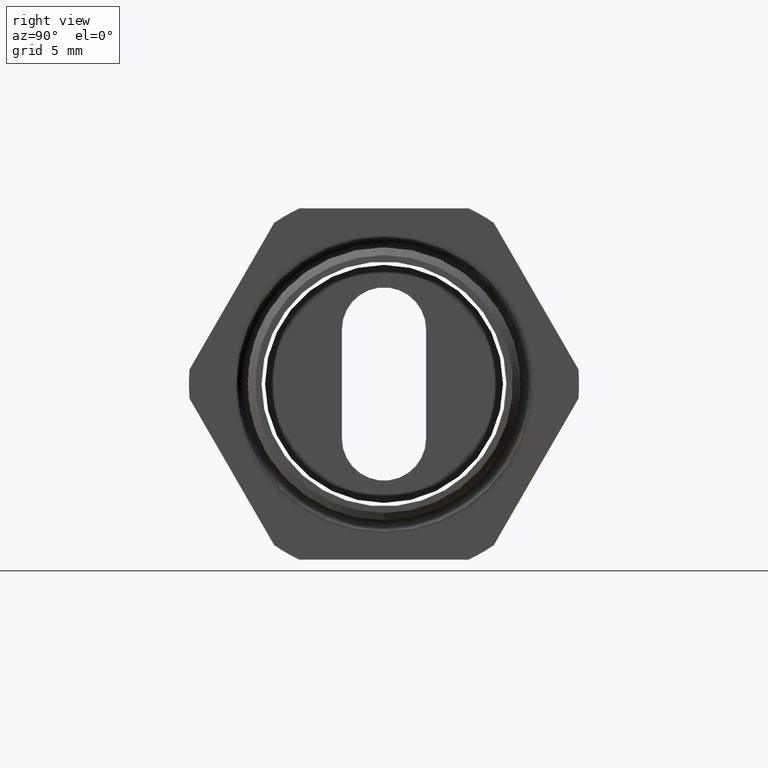
[diagram: clean part render]
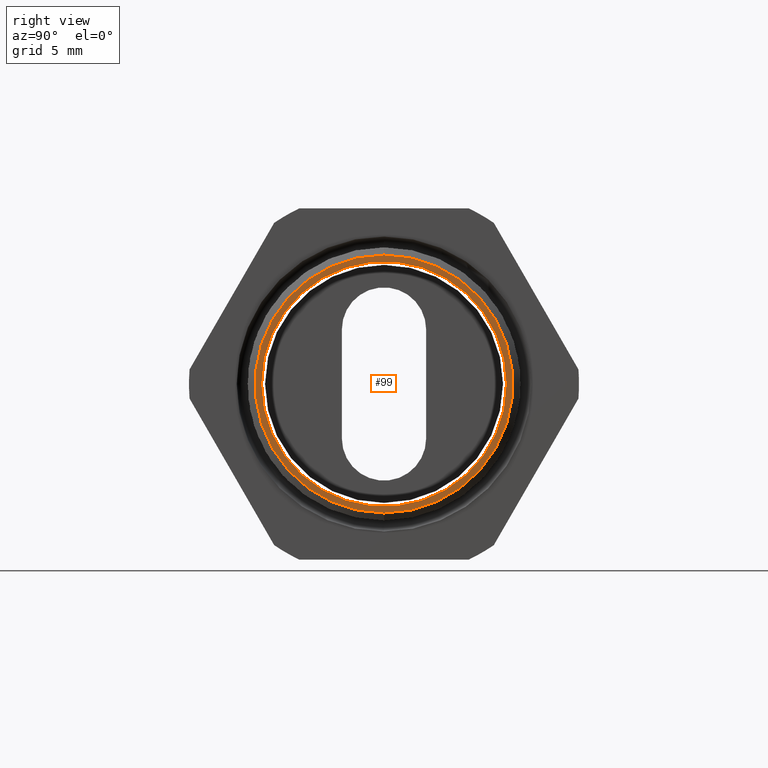
[diagram: same view with one face highlighted and labeled with its STEP entity id]
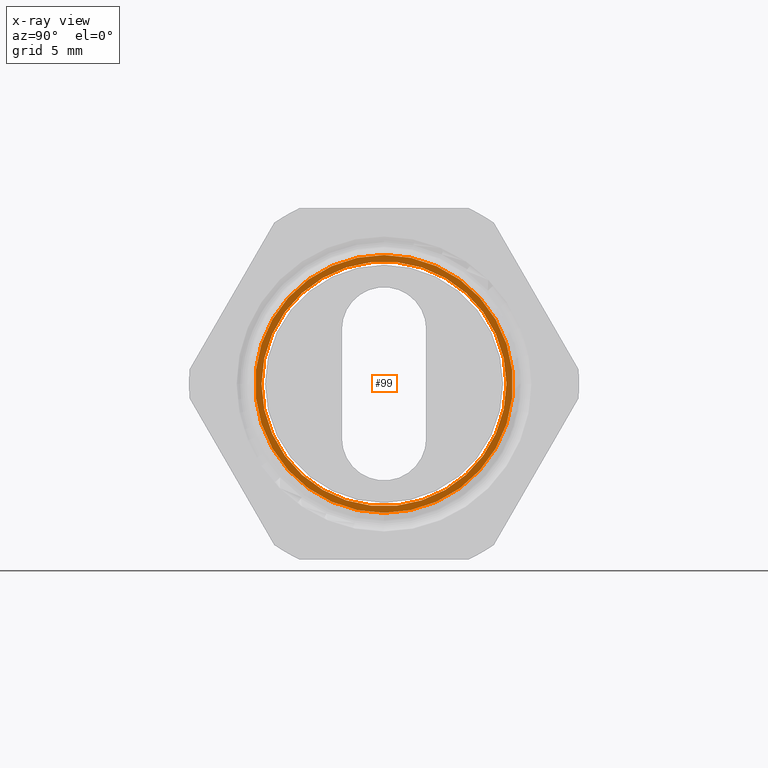
[diagram: x-ray of the same camera — body ghosted, the highlighted face saturated]
A machine part, right view. The second image highlights one B-rep face of the part: STEP entity #99.
The next image is the same camera in x-ray: the body ghosted, the highlighted face saturated — about 0% of this face is hidden behind the body in this view.
In plain terms, the highlighted planar face has unit normal (1, -0, 0).
Its self-contained STEP definition (entity closure, byte-faithful):
#21 = EDGE_CURVE ( 'NONE', #1270, #1329, #1397, .T. ) ;
#22 = ORIENTED_EDGE ( 'NONE', *, *, #1345, .F. ) ;
#23 = EDGE_LOOP ( 'NONE', ( #24, #25 ) ) ;
#24 = ORIENTED_EDGE ( 'NONE', *, *, #42, .F. ) ;
#25 = ORIENTED_EDGE ( 'NONE', *, *, #1053, .F. ) ;
#42 = EDGE_CURVE ( 'NONE', #997, #1051, #1431, .T. ) ;
#99 = ADVANCED_FACE ( 'NONE', ( #1514, #1513 ), #1512, .T. ) ;
#100 = EDGE_LOOP ( 'NONE', ( #101, #22 ) ) ;
#101 = ORIENTED_EDGE ( 'NONE', *, *, #21, .F. ) ;
#997 = VERTEX_POINT ( 'NONE', #2996 ) ;
#1051 = VERTEX_POINT ( 'NONE', #3144 ) ;
#1053 = EDGE_CURVE ( 'NONE', #1051, #997, #3143, .T. ) ;
#1270 = VERTEX_POINT ( 'NONE', #3500 ) ;
#1329 = VERTEX_POINT ( 'NONE', #3639 ) ;
#1345 = EDGE_CURVE ( 'NONE', #1329, #1270, #3667, .T. ) ;
#1389 = DIRECTION ( 'NONE',  ( 4.652354459868603200E-017, 1.000000000000000000, 0.0000000000000000000 ) ) ;
#1390 = DIRECTION ( 'NONE',  ( -1.000000000000000000, 3.749030204222210100E-017, 0.0000000000000000000 ) ) ;
#1391 = CARTESIAN_POINT ( 'NONE',  ( 0.03999999999999996600, 1.045553464142689600E-017, 0.0000000000000000000 ) ) ;
#1392 = AXIS2_PLACEMENT_3D ( 'NONE', #1391, #1390, #1389 ) ;
#1397 = CIRCLE ( 'NONE', #1392, 0.3669980459933370700 ) ;
#1427 = DIRECTION ( 'NONE',  ( 4.899296975725005600E-017, 1.000000000000000000, 0.0000000000000000000 ) ) ;
#1428 = DIRECTION ( 'NONE',  ( 1.000000000000000000, -3.749030204222210100E-017, 0.0000000000000000000 ) ) ;
#1429 = CARTESIAN_POINT ( 'NONE',  ( 0.03999999999999998000, -1.717653877803056500E-016, 0.0000000000000000000 ) ) ;
#1430 = AXIS2_PLACEMENT_3D ( 'NONE', #1429, #1428, #1427 ) ;
#1431 = CIRCLE ( 'NONE', #1430, 0.3485000000000000300 ) ;
#1508 = DIRECTION ( 'NONE',  ( 3.749030204222210100E-017, 1.000000000000000000, 0.0000000000000000000 ) ) ;
#1509 = DIRECTION ( 'NONE',  ( 1.000000000000000000, -3.749030204222210100E-017, 0.0000000000000000000 ) ) ;
#1510 = CARTESIAN_POINT ( 'NONE',  ( 0.03999999999999998000, 0.3484999999999998700, 0.0000000000000000000 ) ) ;
#1511 = AXIS2_PLACEMENT_3D ( 'NONE', #1510, #1509, #1508 ) ;
#1512 = PLANE ( 'NONE',  #1511 ) ;
#1513 = FACE_BOUND ( 'NONE', #23, .T. ) ;
#1514 = FACE_OUTER_BOUND ( 'NONE', #100, .T. ) ;
#2996 = CARTESIAN_POINT ( 'NONE',  ( 0.04000000000000000100, 0.3484999999999998700, 0.0000000000000000000 ) ) ;
#3139 = DIRECTION ( 'NONE',  ( 4.899296975725005600E-017, 1.000000000000000000, 0.0000000000000000000 ) ) ;
#3140 = DIRECTION ( 'NONE',  ( 1.000000000000000000, -3.749030204222210100E-017, 0.0000000000000000000 ) ) ;
#3141 = CARTESIAN_POINT ( 'NONE',  ( 0.03999999999999998000, -1.717653877803056500E-016, 0.0000000000000000000 ) ) ;
#3142 = AXIS2_PLACEMENT_3D ( 'NONE', #3141, #3140, #3139 ) ;
#3143 = CIRCLE ( 'NONE', #3142, 0.3485000000000000300 ) ;
#3144 = CARTESIAN_POINT ( 'NONE',  ( 0.03999999999999996600, -0.3485000000000002500, 4.267894095028527000E-017 ) ) ;
#3500 = CARTESIAN_POINT ( 'NONE',  ( 0.03999999999999996600, -1.199689665351107600E-017, -0.3669980459933370200 ) ) ;
#3639 = CARTESIAN_POINT ( 'NONE',  ( 0.03999999999999996600, 3.294740157839626000E-017, 0.3669980459933370200 ) ) ;
#3663 = DIRECTION ( 'NONE',  ( 4.652354459868603200E-017, 1.000000000000000000, 0.0000000000000000000 ) ) ;
#3664 = DIRECTION ( 'NONE',  ( -1.000000000000000000, 3.749030204222210100E-017, 0.0000000000000000000 ) ) ;
#3665 = CARTESIAN_POINT ( 'NONE',  ( 0.03999999999999996600, 1.045553464142689600E-017, 0.0000000000000000000 ) ) ;
#3666 = AXIS2_PLACEMENT_3D ( 'NONE', #3665, #3664, #3663 ) ;
#3667 = CIRCLE ( 'NONE', #3666, 0.3669980459933370700 ) ;